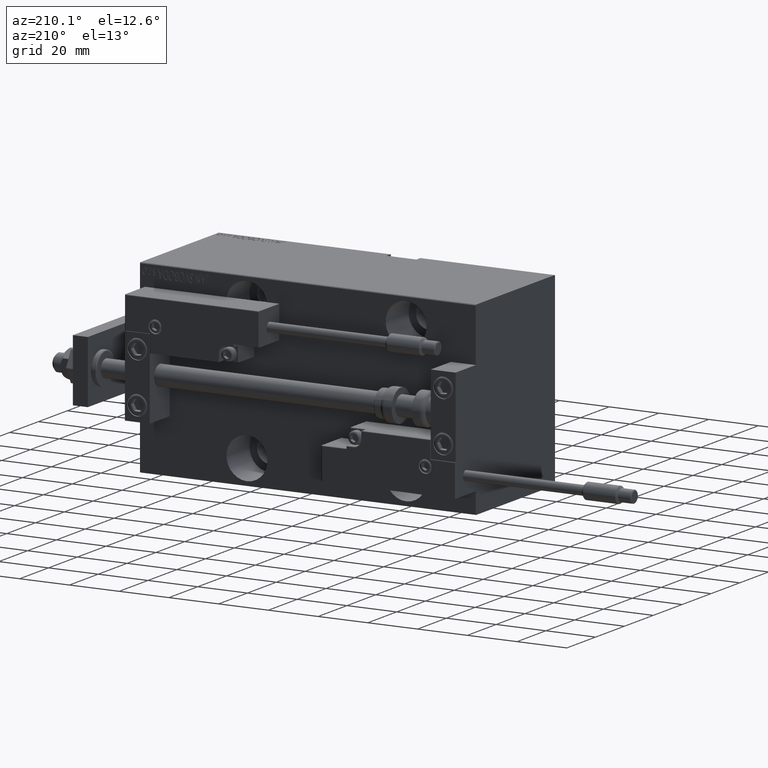
[diagram: clean part render]
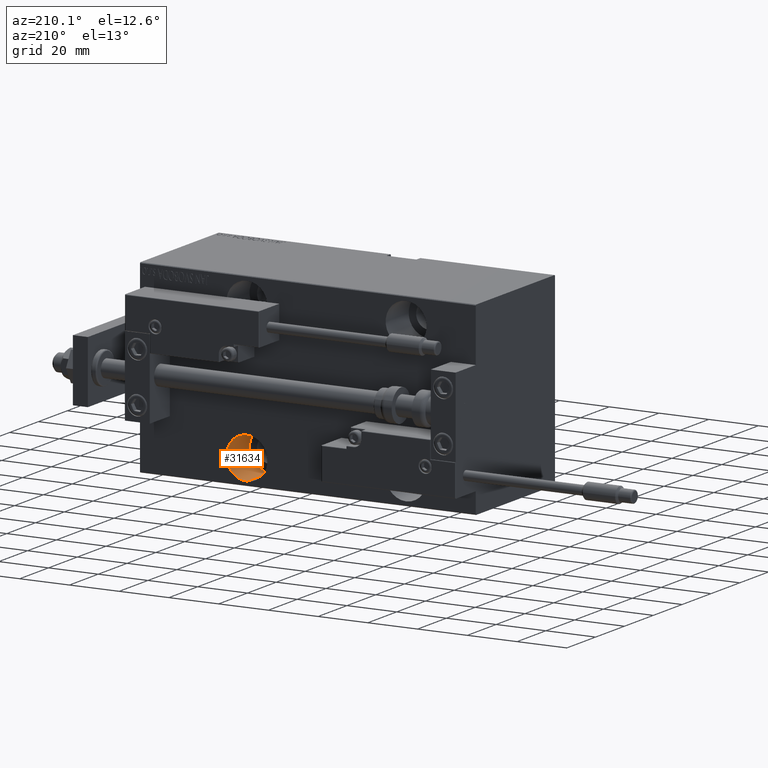
[diagram: same view with one face highlighted and labeled with its STEP entity id]
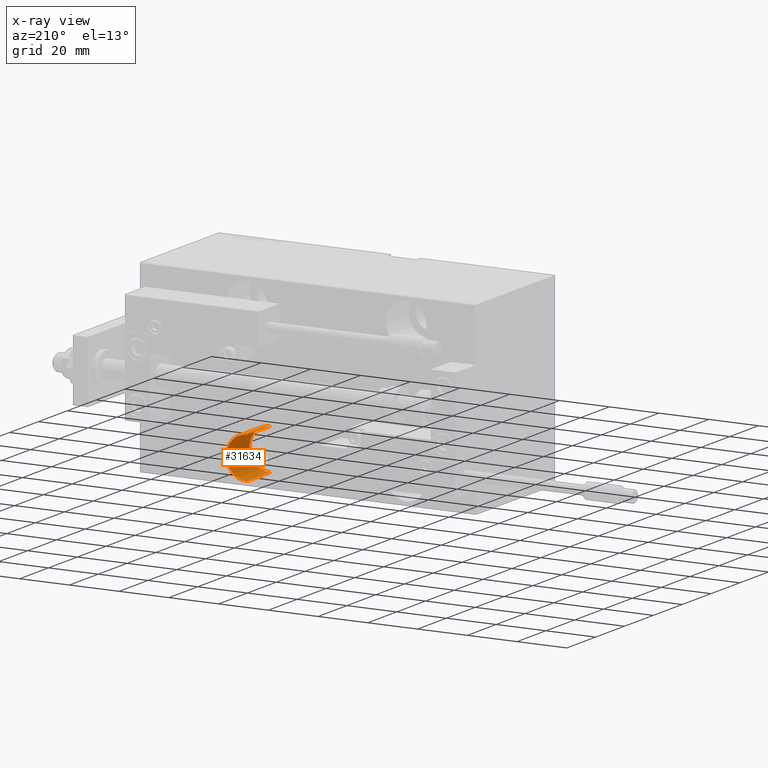
[diagram: x-ray of the same camera — body ghosted, the highlighted face saturated]
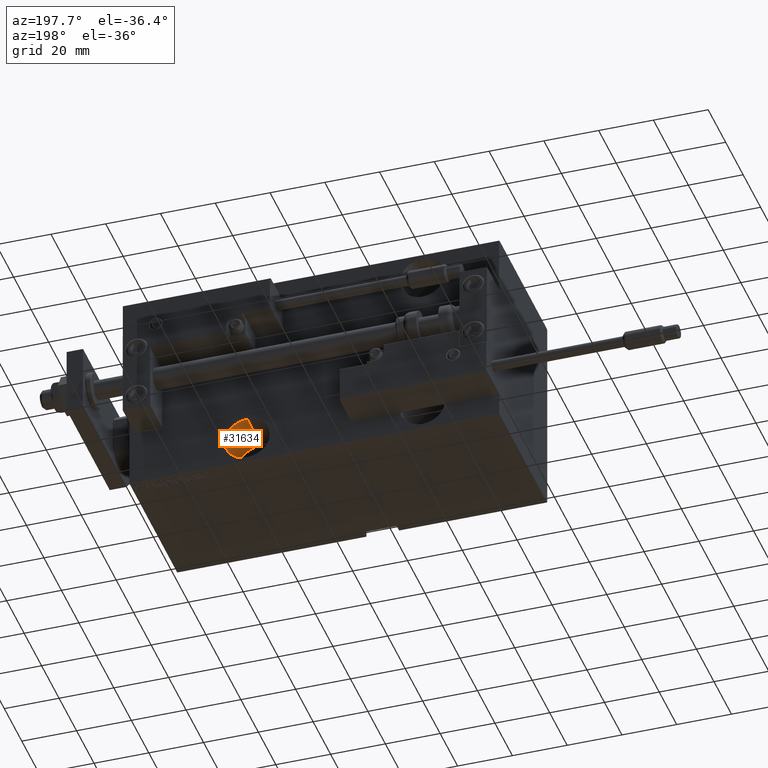
[diagram: same view with one face highlighted and labeled with its STEP entity id]
A machine part, auxiliary view. The second image highlights one B-rep face of the part: STEP entity #31634.
The next image is the same camera in x-ray: the body ghosted, the highlighted face saturated — about 0% of this face is hidden behind the body in this view.
A second angle (auxiliary view) of the same face is appended — the face is thin or edge-on in the first view.
In plain terms, the highlighted cylindrical surface (edge-blend (fillet) strip) has radius 8.25 mm, axis along (0, 1, -0).
Its self-contained STEP definition (entity closure, byte-faithful):
#336 = VERTEX_POINT ( 'NONE', #36202 ) ;
#1297 = DIRECTION ( 'NONE',  ( 0.000000000000000000, 0.000000000000000000, -1.000000000000000000 ) ) ;
#2596 = CYLINDRICAL_SURFACE ( 'NONE', #38298, 8.249999999999996447 ) ;
#2606 = CARTESIAN_POINT ( 'NONE',  ( 43.00000000000000000, -27.50000000000000000, -35.75000000000000711 ) ) ;
#3491 = EDGE_CURVE ( 'NONE', #36260, #30557, #19355, .T. ) ;
#3597 = CIRCLE ( 'NONE', #5237, 8.249999999999996447 ) ;
#4194 = CARTESIAN_POINT ( 'NONE',  ( 43.00000000000000000, -11.50000000000000000, -19.25000000000001066 ) ) ;
#4516 = LINE ( 'NONE', #11374, #18739 ) ;
#5237 = AXIS2_PLACEMENT_3D ( 'NONE', #44056, #29328, #5802 ) ;
#5802 = DIRECTION ( 'NONE',  ( 0.000000000000000000, 0.000000000000000000, -1.000000000000000000 ) ) ;
#7375 = EDGE_CURVE ( 'NONE', #36260, #336, #12253, .T. ) ;
#7683 = EDGE_CURVE ( 'NONE', #336, #33398, #4516, .T. ) ;
#7720 = ORIENTED_EDGE ( 'NONE', *, *, #7375, .F. ) ;
#8340 = DIRECTION ( 'NONE',  ( -0.000000000000000000, -1.000000000000000000, -0.000000000000000000 ) ) ;
#11374 = CARTESIAN_POINT ( 'NONE',  ( 43.00000000000000000, -11.50000000000000000, -35.75000000000000711 ) ) ;
#12253 = CIRCLE ( 'NONE', #43004, 8.249999999999996447 ) ;
#16147 = VECTOR ( 'NONE', #38883, 1000.000000000000000 ) ;
#18739 = VECTOR ( 'NONE', #8340, 1000.000000000000000 ) ;
#19355 = LINE ( 'NONE', #4194, #16147 ) ;
#19743 = CARTESIAN_POINT ( 'NONE',  ( 43.00000000000000000, -11.50000000000000000, -27.50000000000000711 ) ) ;
#21808 = FACE_OUTER_BOUND ( 'NONE', #40666, .T. ) ;
#25873 = DIRECTION ( 'NONE',  ( -0.000000000000000000, -1.000000000000000000, -0.000000000000000000 ) ) ;
#26125 = CARTESIAN_POINT ( 'NONE',  ( 43.00000000000000000, -11.50000000000000000, -27.50000000000000711 ) ) ;
#29328 = DIRECTION ( 'NONE',  ( 0.000000000000000000, -1.000000000000000000, 0.000000000000000000 ) ) ;
#30557 = VERTEX_POINT ( 'NONE', #33773 ) ;
#30787 = ORIENTED_EDGE ( 'NONE', *, *, #33962, .T. ) ;
#31543 = ORIENTED_EDGE ( 'NONE', *, *, #7683, .F. ) ;
#31634 = ADVANCED_FACE ( 'NONE', ( #21808 ), #2596, .F. ) ;
#32907 = ORIENTED_EDGE ( 'NONE', *, *, #3491, .T. ) ;
#33398 = VERTEX_POINT ( 'NONE', #2606 ) ;
#33773 = CARTESIAN_POINT ( 'NONE',  ( 43.00000000000000000, -27.50000000000000000, -19.25000000000001066 ) ) ;
#33962 = EDGE_CURVE ( 'NONE', #30557, #33398, #3597, .T. ) ;
#35209 = DIRECTION ( 'NONE',  ( 0.000000000000000000, -1.000000000000000000, 0.000000000000000000 ) ) ;
#36202 = CARTESIAN_POINT ( 'NONE',  ( 43.00000000000000000, -11.50000000000000000, -35.75000000000000711 ) ) ;
#36260 = VERTEX_POINT ( 'NONE', #41013 ) ;
#38298 = AXIS2_PLACEMENT_3D ( 'NONE', #26125, #25873, #41351 ) ;
#38883 = DIRECTION ( 'NONE',  ( -0.000000000000000000, -1.000000000000000000, -0.000000000000000000 ) ) ;
#40666 = EDGE_LOOP ( 'NONE', ( #7720, #32907, #30787, #31543 ) ) ;
#41013 = CARTESIAN_POINT ( 'NONE',  ( 43.00000000000000000, -11.50000000000000000, -19.25000000000001066 ) ) ;
#41351 = DIRECTION ( 'NONE',  ( 0.000000000000000000, 0.000000000000000000, -1.000000000000000000 ) ) ;
#43004 = AXIS2_PLACEMENT_3D ( 'NONE', #19743, #35209, #1297 ) ;
#44056 = CARTESIAN_POINT ( 'NONE',  ( 43.00000000000000000, -27.50000000000000000, -27.50000000000000711 ) ) ;